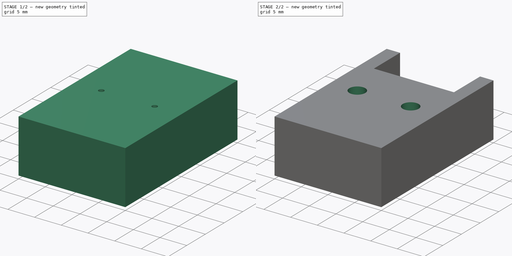
[diagram: build sequence overview — one tinted view per stage of 2, left to right]
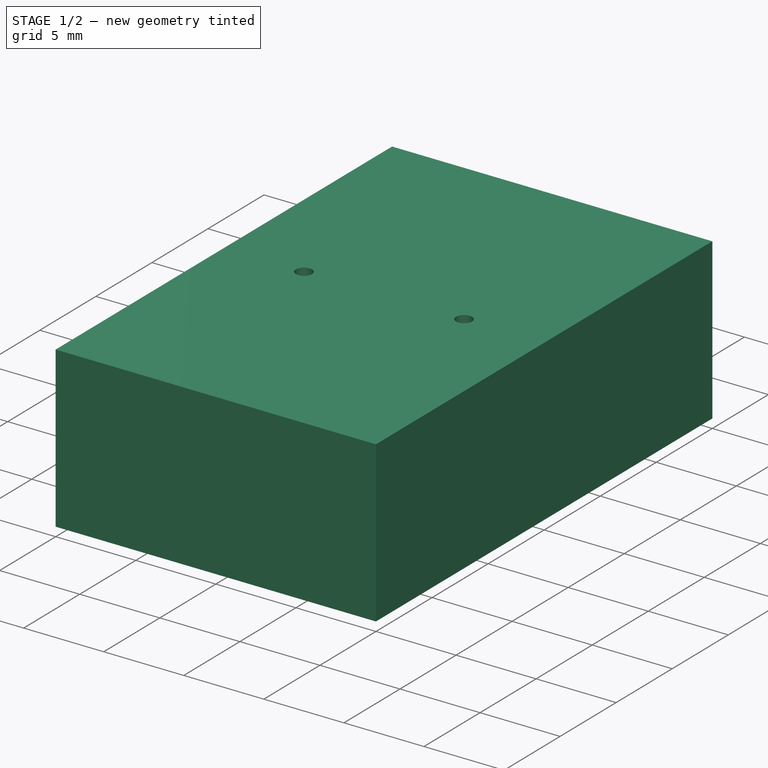
[diagram: stage 1 of 2 — iso view after this stage's code; geometry added in this stage tinted green]
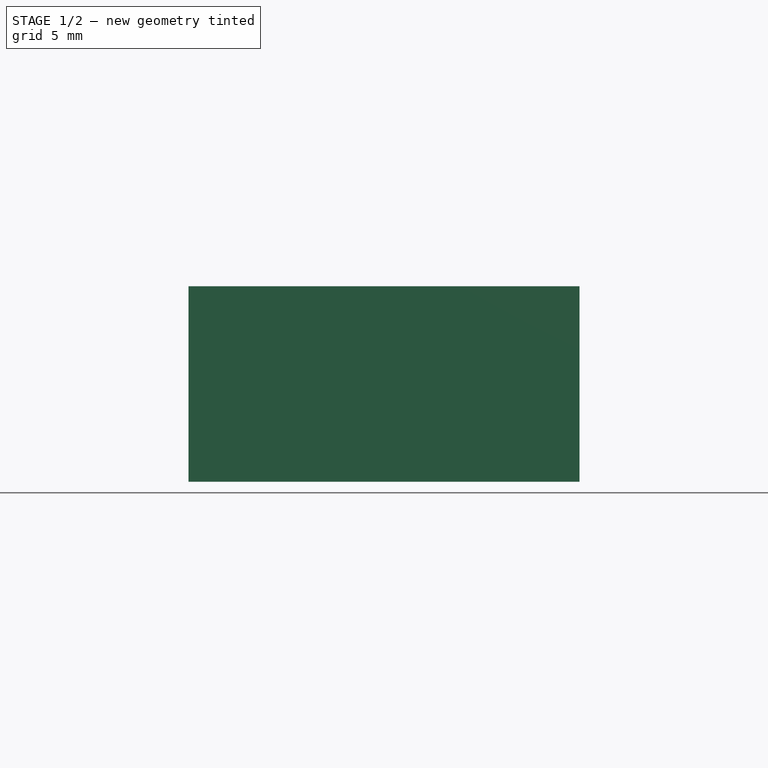
[diagram: stage 1 of 2 — front view after this stage's code; geometry added in this stage tinted green]
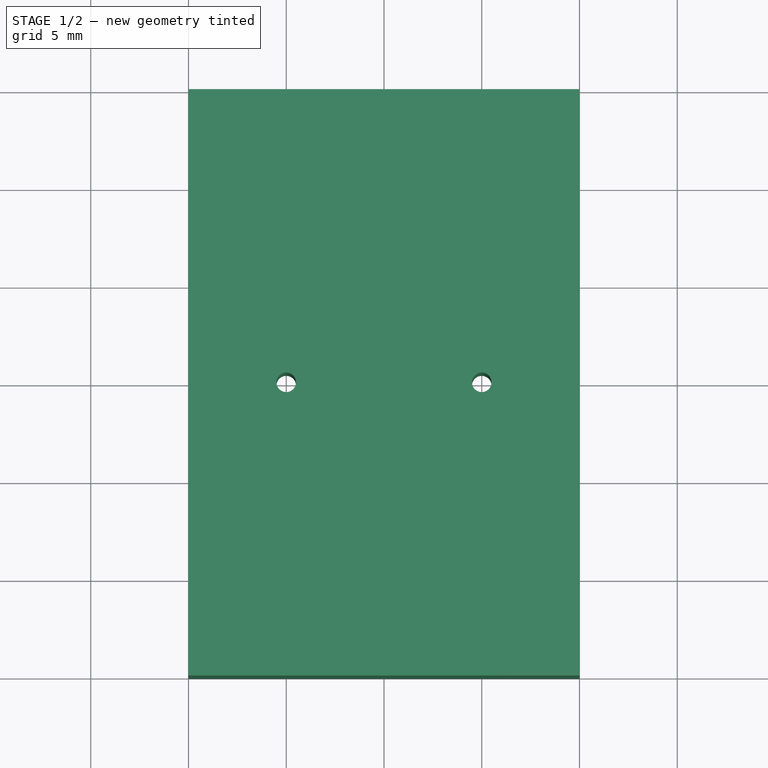
[diagram: stage 1 of 2 — top view after this stage's code; geometry added in this stage tinted green]
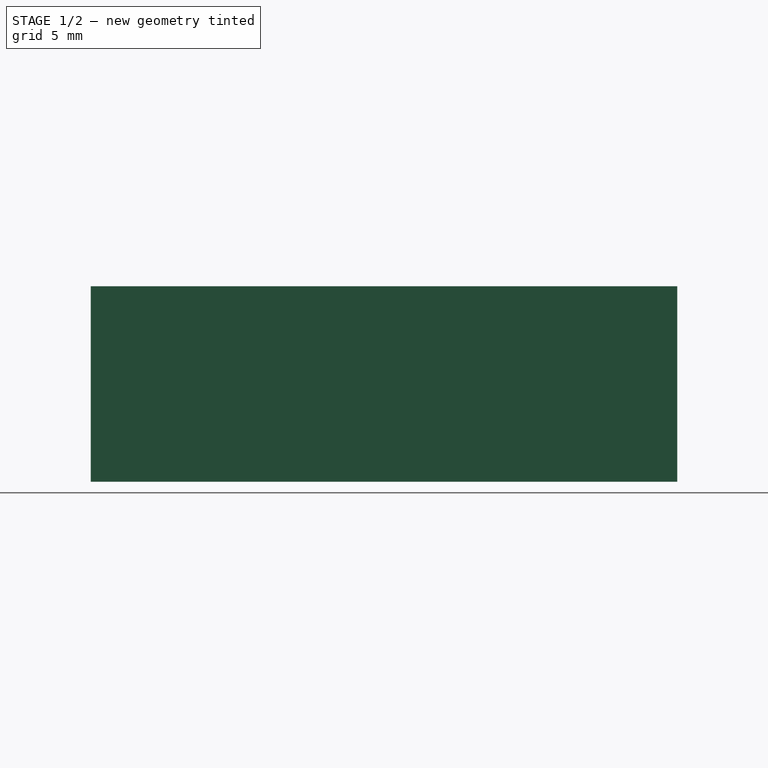
[diagram: stage 1 of 2 — right view after this stage's code; geometry added in this stage tinted green]
FCSTD DOCUMENT  (FreeCAD 1.0R39109 (Git))
Label: spd
License: All rights reserved
LicenseURL: https://en.wikipedia.org/wiki/All_rights_reserved
objects: Sketcher::SketchObject×2, PartDesign::Pad×2, PartDesign::Body×2, Spreadsheet::Sheet×1, PartDesign::Hole×1, Part::Cut×1
note: 16 computed .brp shape members not serialized (recipe doc carries the construction recipe); baked Part::Feature solids carry a one-line shape summary decoded from their .brp

FEATURE [Spreadsheet::Sheet] Spreadsheet
  cells = A1='width; B1(width)=20; A2='height; B2(height)=30; A3='depth; B3(depth)=10; A4='pocket_width; B4(pocket_width)=15; A6='pocket_height; B6(pocket_height)=8; A7='pocket_channel_width; B7(pocket_channel_width)=7; A8='pocket_hanger_depth; B8(pocket_hanger_depth)=2; A9='hole_height; B9(hole_height)==B2 / 2; A10='hole_spacing; B10(hole_spacing)=10; A11='hole_diamater; B11(hole_diameter)=3; A12='bore_depth; B12(bore_depth)=2; A13='bore_diameter; B13(bore_diameter)==B11 + 2
FEATURE [Sketcher::SketchObject] Sketch
  ArcFitTolerance = 1e-06
  AttachmentSupport = -> [XY_Plane]
  FullyConstrained = true
  MakeInternals = false
  MapMode = 5
  expr: Constraints[11] = Spreadsheet.hole_spacing
  expr: Constraints[16] = Spreadsheet.height
  expr: Constraints[17] = Spreadsheet.hole_height
  sketch-geometry (7):
    g0: LineSegment StartX=10 StartY=-30 StartZ=0 EndX=-10 EndY=-30 EndZ=0
    g1: LineSegment StartX=-10 StartY=-30 StartZ=0 EndX=-10 EndY=0 EndZ=0
    g2: LineSegment StartX=-10 StartY=0 StartZ=0 EndX=10 EndY=0 EndZ=0
    g3: LineSegment StartX=10 StartY=0 StartZ=0 EndX=10 EndY=-30 EndZ=0
    g4: LineSegment [constr] StartX=5 StartY=-15 StartZ=0 EndX=-5 EndY=-15 EndZ=0
    g5: Circle CenterX=5 CenterY=-15 CenterZ=0 NormalX=0 NormalY=0 NormalZ=1 AngleXU=0 Radius=0.5
    g6: Circle CenterX=-5 CenterY=-15 CenterZ=0 NormalX=0 NormalY=0 NormalZ=1 AngleXU=0 Radius=0.5
  constraints (18):
    c: Coincident(g0,g1)
    c: Coincident(g1,g2)
    c: Coincident(g2,g3)
    c: Coincident(g3,g0)
    c: Horizontal(g2)
    c: Vertical(g1)
    c: Vertical(g3)
    c: DistanceX(g2,g2) = 20
    c: Symmetric(g0,g0,g-2)
    c: PointOnObject(g2,g-1)
    c: Symmetric(g4,g4,g-2)
    c: DistanceX(g4,g4) = 10
    c: Diameter(g5) = 1
    c: Coincident(g5,g4)
    c: Diameter(g6) = 1
    c: Coincident(g6,g4)
    c: Distance(g0,g-1) = 30
    c: Distance(g4,g0) = 15
FEATURE [PartDesign::Pad] Pad
  Direction = (0,0,1)
  Length = 10
  Length2 = 10
  Profile = -> Sketch
  ReferenceAxis = -> Sketch [N_Axis]
  Refine = true
  Suppressed = false
  Type = 0
FEATURE [PartDesign::Body] Body  label="Block"
  AllowCompound = false
  Group = -> [Sketch,Pad,Hole]
  Origin = -> Origin
  Tip = -> Hole
FEATURE [Sketcher::SketchObject] Sketch001
  ArcFitTolerance = 1e-06
  AttachmentSupport = -> [XZ_Plane001]
  FullyConstrained = true
  MakeInternals = false
  MapMode = 5
  Placement = pos=(0,0,0) rot=(1,0,0;1.5708rad)
  expr: Constraints[10] = Spreadsheet.pocket_hanger_depth
  expr: Constraints[19] = Spreadsheet.pocket_channel_width
  expr: Constraints[20] = Spreadsheet.pocket_width
  expr: Constraints[21] = Spreadsheet.pocket_height
  sketch-geometry (8):
    g0: LineSegment StartX=-7.5 StartY=10 StartZ=0 EndX=7.5 EndY=10 EndZ=0
    g1: LineSegment StartX=7.5 StartY=10 StartZ=0 EndX=7.5 EndY=2 EndZ=0
    g2: LineSegment StartX=-7.5 StartY=10 StartZ=0 EndX=-7.5 EndY=2 EndZ=0
    g3: LineSegment StartX=-7.5 StartY=2 StartZ=0 EndX=-3.5 EndY=2 EndZ=0
    g4: LineSegment StartX=-3.5 StartY=2 StartZ=0 EndX=-3.5 EndY=0 EndZ=0
    g5: LineSegment StartX=-3.5 StartY=0 StartZ=0 EndX=3.5 EndY=1e-16 EndZ=0
    g6: LineSegment StartX=3.5 StartY=1e-16 StartZ=0 EndX=3.5 EndY=2 EndZ=0
    g7: LineSegment StartX=3.5 StartY=2 StartZ=0 EndX=7.5 EndY=2 EndZ=0
  constraints (23):
    c: Horizontal(g0)
    c: Coincident(g1,g0)
    c: Vertical(g1)
    c: Coincident(g2,g0)
    c: Vertical(g2)
    c: Coincident(g3,g2)
    c: Horizontal(g3)
    c: Vertical(g4)
    c: Coincident(g7,g1)
    c: Horizontal(g7)
    c: DistanceY(g4,g4) = 2
    c: Coincident(g5,g4)
    c: Coincident(g6,g5)
    c: Coincident(g3,g4)
    c: Equal(g4,g6)
    c: Symmetric(g4,g5,g-2)
    c: Coincident(g6,g7)
    c: Equal(g3,g7)
    c: Vertical(g6)
    c: DistanceX(g5,g5) = 7
    c: DistanceX(g0,g0) = 15
    c: DistanceY(g1,g1) = 8
    c: PointOnObject(g4,g-1)
FEATURE [PartDesign::Pad] Pad001
  Direction = (0,-1,2e-16)
  Length = 7
  Length2 = 10
  Placement = pos=(0,0,0) rot=(1,0,0;1.5708rad)
  Profile = -> Sketch001
  ReferenceAxis = -> Sketch001 [N_Axis]
  Refine = true
  Suppressed = false
  Type = 0
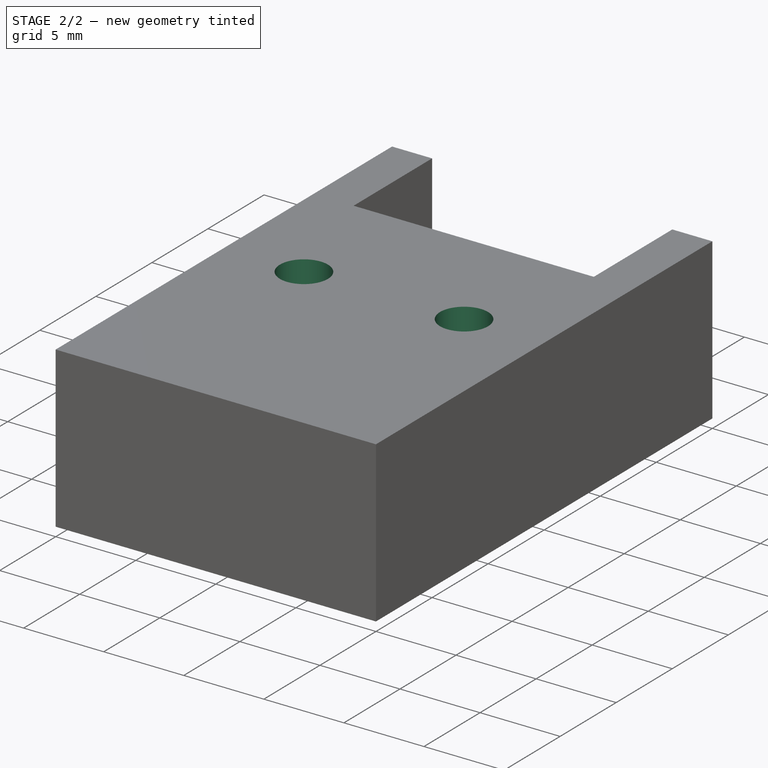
[diagram: stage 2 of 2 — iso view after this stage's code; geometry added in this stage tinted green]
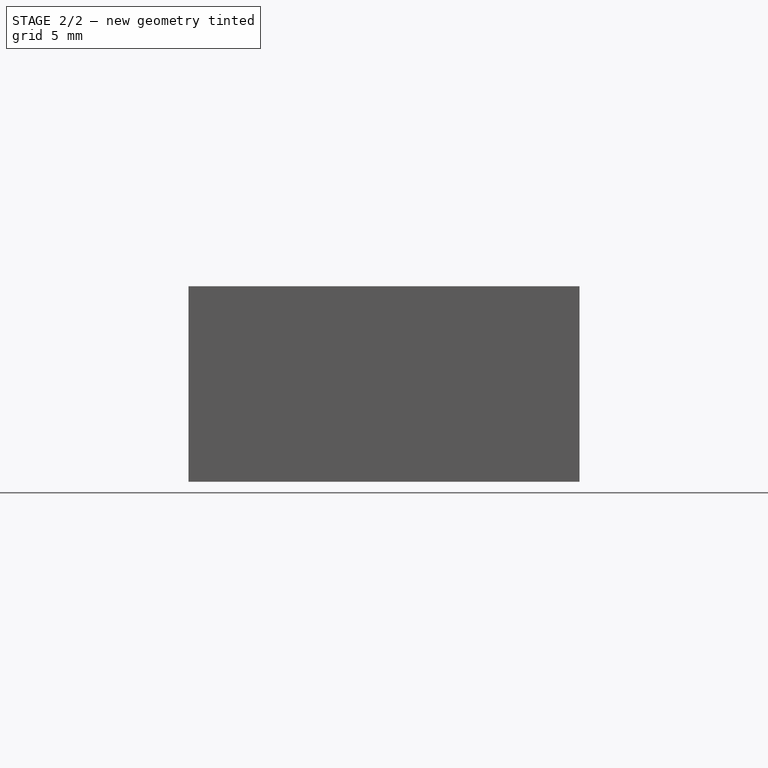
[diagram: stage 2 of 2 — front view after this stage's code; geometry added in this stage tinted green]
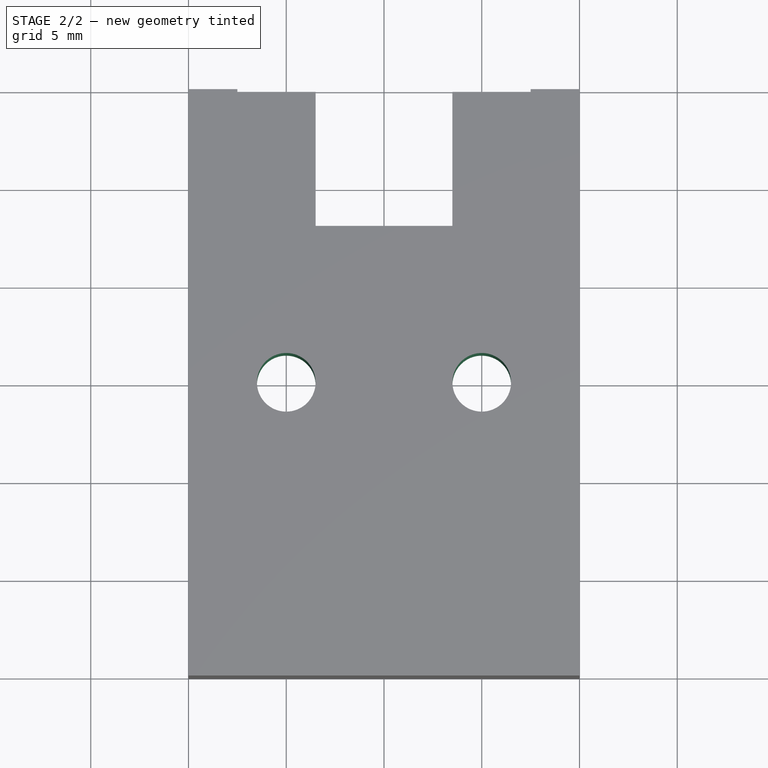
[diagram: stage 2 of 2 — top view after this stage's code; geometry added in this stage tinted green]
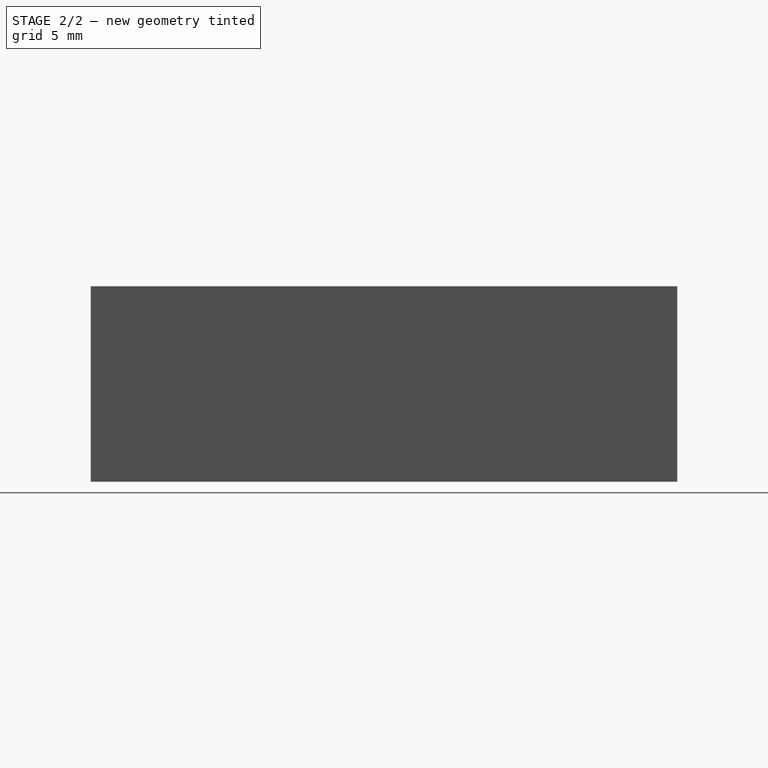
[diagram: stage 2 of 2 — right view after this stage's code; geometry added in this stage tinted green]
FEATURE [PartDesign::Hole] Hole
  BaseFeature = -> Pad
  CustomThreadClearance = 0
  Depth = 10
  DepthType = 0
  Diameter = 3
  DrillForDepth = false
  DrillPoint = 1
  DrillPointAngle = 118
  HoleCutCountersinkAngle = 90
  HoleCutCustomValues = false
  HoleCutDepth = 2
  HoleCutDiameter = 5
  HoleCutType = 1
  ModelThread = false
  Profile = -> Sketch
  Refine = true
  Reversed = true
  Suppressed = false
  Tapered = false
  TaperedAngle = 90
  ThreadClass = 0
  ThreadDepth = 10
  ThreadDepthType = 0
  ThreadDirection = 0
  ThreadFit = 0
  ThreadSize = 0
  ThreadType = 0
  Threaded = false
  UseCustomThreadClearance = false
FEATURE [PartDesign::Body] Body001  label="Pocket"
  AllowCompound = false
  Group = -> [Sketch001,Pad001]
  Origin = -> Origin001
  Tip = -> Pad001
FEATURE [Part::Cut] Cut
  Base = -> Body
  Tool = -> Body001
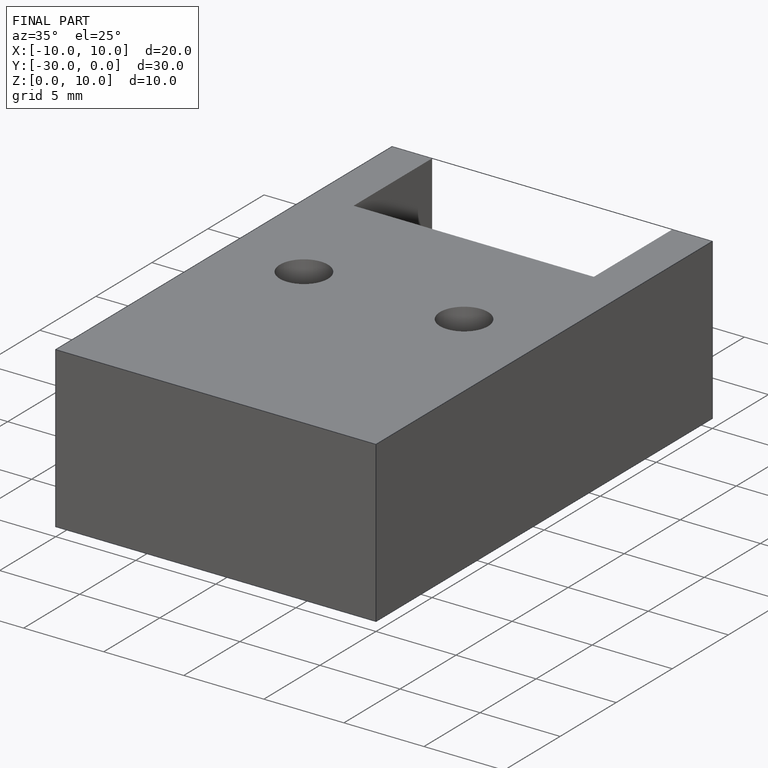
[diagram: finished part — iso view with bounding-box wireframe]
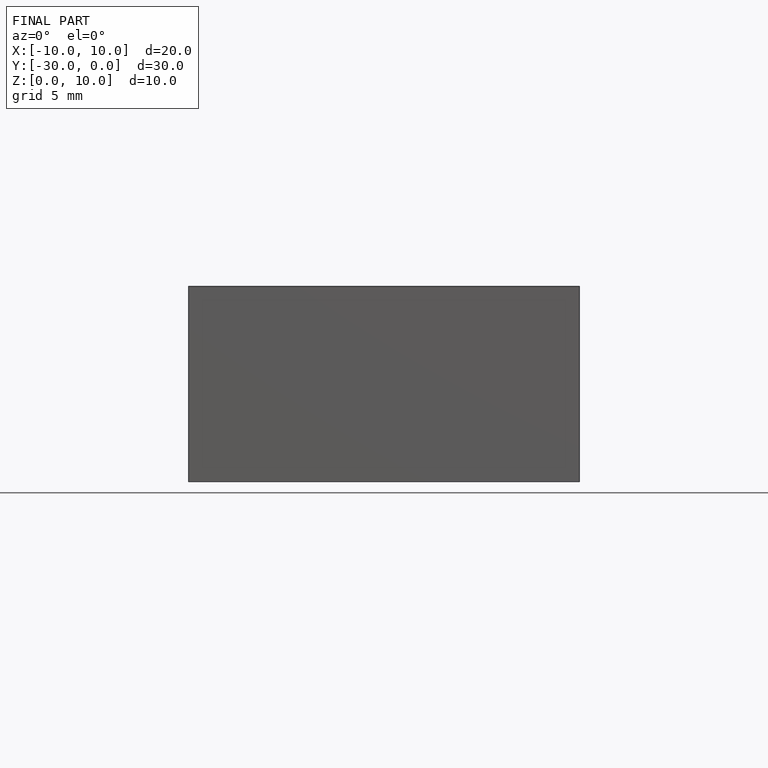
[diagram: finished part — front view with bounding-box wireframe]
